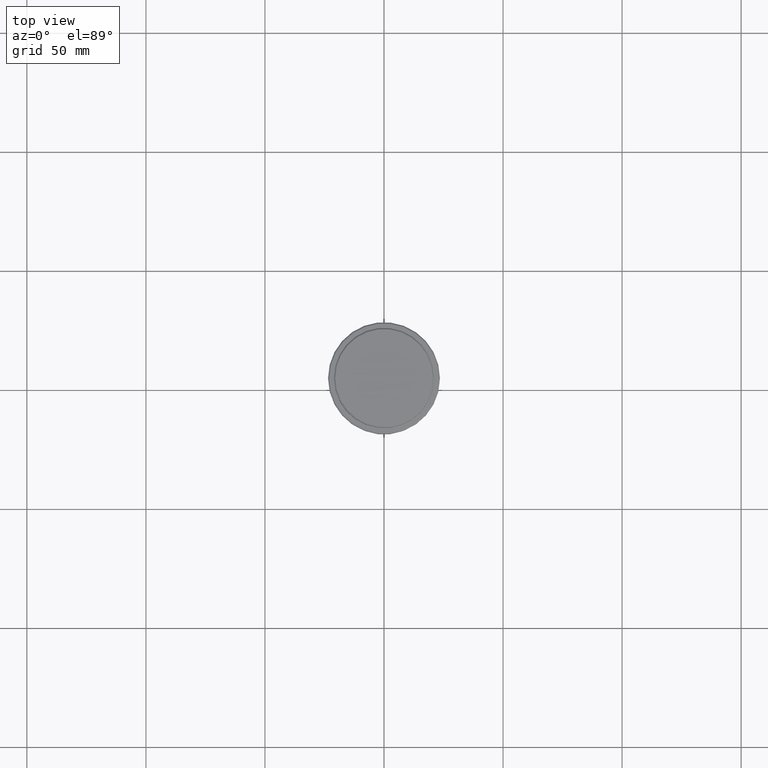
[diagram: clean part render]
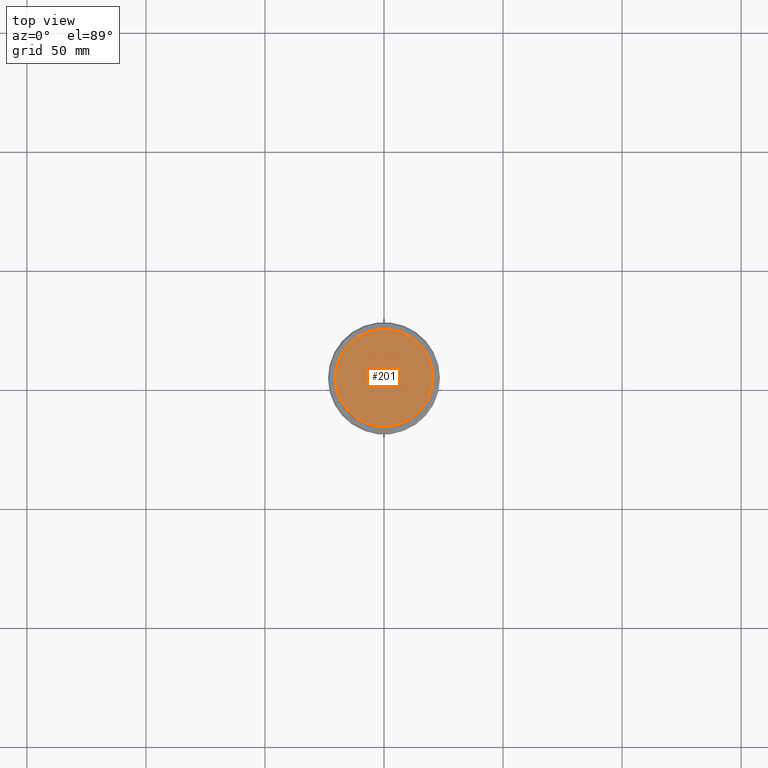
[diagram: same view with one face highlighted and labeled with its STEP entity id]
A machine part, top view. The second image highlights one B-rep face of the part: STEP entity #201.
In plain terms, the highlighted planar face has unit normal (0, -0, 1).
Its self-contained STEP definition (entity closure, byte-faithful):
#51 = AXIS2_PLACEMENT_3D ( 'NONE', #250, #668, #1084 ) ;
#75 = AXIS2_PLACEMENT_3D ( 'NONE', #216, #769, #427 ) ;
#201 = ADVANCED_FACE ( 'NONE', ( #532 ), #1081, .T. ) ;
#202 = CARTESIAN_POINT ( 'NONE',  ( -20.49999999999998934, 0.000000000000000000, 0.000000000000000000 ) ) ;
#216 = CARTESIAN_POINT ( 'NONE',  ( 0.000000000000000000, 0.000000000000000000, 0.000000000000000000 ) ) ;
#250 = CARTESIAN_POINT ( 'NONE',  ( 0.000000000000000000, 0.000000000000000000, 0.000000000000000000 ) ) ;
#347 = EDGE_CURVE ( 'NONE', #1389, #1352, #1291, .T. ) ;
#361 = ORIENTED_EDGE ( 'NONE', *, *, #347, .T. ) ;
#422 = ORIENTED_EDGE ( 'NONE', *, *, #1070, .T. ) ;
#427 = DIRECTION ( 'NONE',  ( 1.000000000000000000, 0.000000000000000000, 0.000000000000000000 ) ) ;
#436 = CARTESIAN_POINT ( 'NONE',  ( 0.000000000000000000, 0.000000000000000000, 0.000000000000000000 ) ) ;
#532 = FACE_OUTER_BOUND ( 'NONE', #1224, .T. ) ;
#668 = DIRECTION ( 'NONE',  ( -0.000000000000000000, -0.000000000000000000, 1.000000000000000000 ) ) ;
#769 = DIRECTION ( 'NONE',  ( 0.000000000000000000, -0.000000000000000000, 1.000000000000000000 ) ) ;
#781 = DIRECTION ( 'NONE',  ( -0.000000000000000000, -0.000000000000000000, 1.000000000000000000 ) ) ;
#962 = CARTESIAN_POINT ( 'NONE',  ( 20.49999999999998934, 2.541142108230757085E-15, 0.000000000000000000 ) ) ;
#1070 = EDGE_CURVE ( 'NONE', #1352, #1389, #1339, .T. ) ;
#1081 = PLANE ( 'NONE',  #75 ) ;
#1084 = DIRECTION ( 'NONE',  ( 1.000000000000000000, 0.000000000000000000, 0.000000000000000000 ) ) ;
#1121 = DIRECTION ( 'NONE',  ( 1.000000000000000000, 0.000000000000000000, 0.000000000000000000 ) ) ;
#1186 = AXIS2_PLACEMENT_3D ( 'NONE', #436, #781, #1121 ) ;
#1224 = EDGE_LOOP ( 'NONE', ( #361, #422 ) ) ;
#1291 = CIRCLE ( 'NONE', #51, 20.49999999999998934 ) ;
#1339 = CIRCLE ( 'NONE', #1186, 20.49999999999998934 ) ;
#1352 = VERTEX_POINT ( 'NONE', #962 ) ;
#1389 = VERTEX_POINT ( 'NONE', #202 ) ;